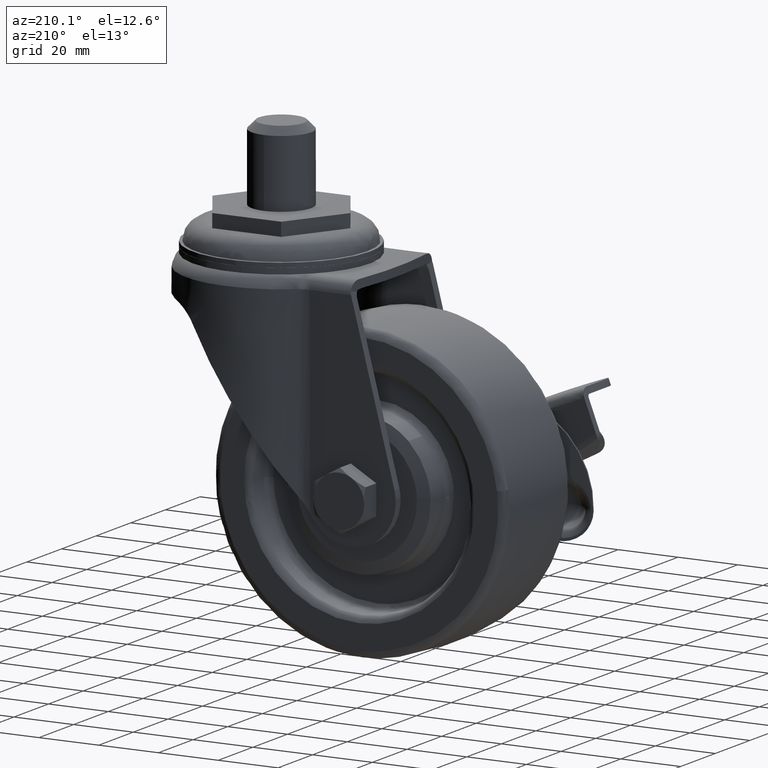
[diagram: clean part render]
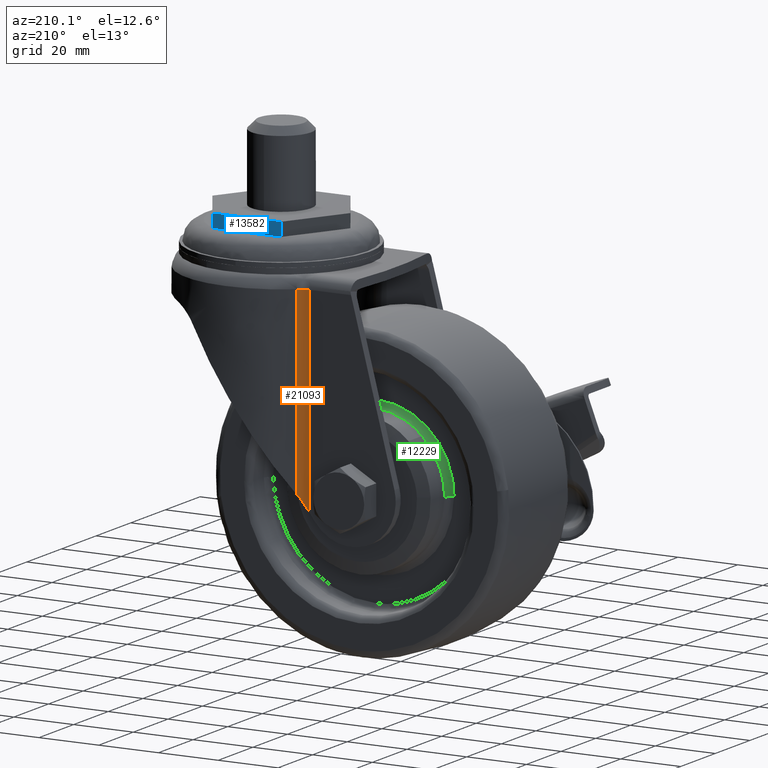
[diagram: same view with three faces highlighted in distinct colors, each labeled with its STEP entity id]
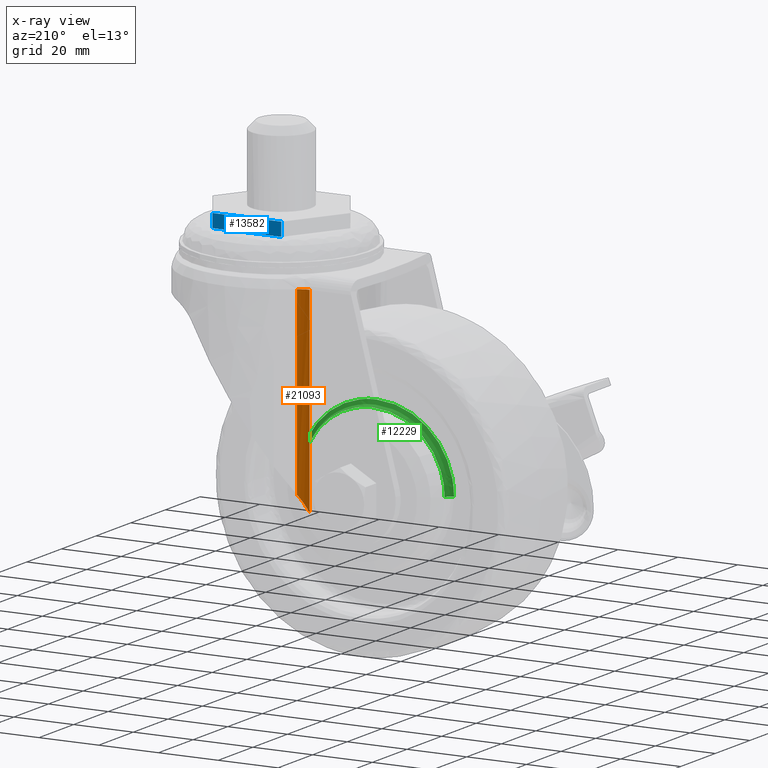
[diagram: x-ray of the same camera — body ghosted, the three highlighted faces saturated]
A machine part, auxiliary view with three faces highlighted in distinct colors.
The next image is the same camera in x-ray (body ghosted, the three faces saturated) — at least one of them is partly hidden behind the body in this view.
Their STEP definitions:

[orange] entity #21093 — the highlighted face is a freeform B-spline surface patch.
#19828=CARTESIAN_POINT('',(-19.567368212287199,24.924680209679948,-13.699999999999999));
#19829=VERTEX_POINT('',#19828);
#20657=CARTESIAN_POINT('',(-19.567368212287100,24.924680209680002,-74.579402681296202));
#20658=VERTEX_POINT('',#20657);
#20698=CARTESIAN_POINT('',(-19.567368212287100,24.924680209680002,-74.579402681296202));
#20699=CARTESIAN_POINT('',(-19.567368212287199,24.924680209679948,-13.699999999999999));
#20700=QUASI_UNIFORM_CURVE('',1,(#20698,#20699),.UNSPECIFIED.,.F.,.U.);
#20701=EDGE_CURVE('',#20658,#19829,#20700,.T.);
#20948=CARTESIAN_POINT('',(-23.200042282470001,23.699999999999999,-13.699999999999999));
#20949=VERTEX_POINT('',#20948);
#20950=CARTESIAN_POINT('',(-23.200042282470001,23.699999999999999,-13.699999999999999));
#20951=CARTESIAN_POINT('',(-21.177267567173192,23.699999999999992,-13.700000000000003));
#20952=CARTESIAN_POINT('',(-19.567368212287239,24.924680209680002,-13.699999999999999));
#20960=(BOUNDED_CURVE()B_SPLINE_CURVE(2,(#20950,#20951,#20952),.UNSPECIFIED.,.F.,.U.)CURVE()GEOMETRIC_REPRESENTATION_ITEM()QUASI_UNIFORM_CURVE()RATIONAL_B_SPLINE_CURVE((1.0,0.947598710351592,1.0))REPRESENTATION_ITEM(''));
#20961=EDGE_CURVE('',#20949,#19829,#20960,.T.);
#21055=CARTESIAN_POINT('',(-19.417744588304355,25.042294110540130,-81.547591565202026));
#21056=CARTESIAN_POINT('',(-19.417744588304355,25.042294110540130,-12.003810210869943));
#21057=CARTESIAN_POINT('',(-21.154937907496436,23.631603431171765,-81.547591565202040));
#21058=CARTESIAN_POINT('',(-21.154937907496436,23.631603431171765,-12.003810210869945));
#21059=CARTESIAN_POINT('',(-23.391628061655911,23.703059539297264,-81.547591565202040));
#21060=CARTESIAN_POINT('',(-23.391628061655911,23.703059539297264,-12.003810210869943));
#21068=(BOUNDED_SURFACE()B_SPLINE_SURFACE(1,2,((#21055,#21057,#21059),(#21056,#21058,#21060)),.UNSPECIFIED.,.F.,.F.,.U.)B_SPLINE_SURFACE_WITH_KNOTS((2,2),(3,3),(0.0,69.543781354332097),(0.0,4.329966276651525),.UNSPECIFIED.)GEOMETRIC_REPRESENTATION_ITEM()RATIONAL_B_SPLINE_SURFACE(((0.998584671659950,0.932319791310802,0.991539049057113),(0.998584671659950,0.932319791310802,0.991539049057113)))REPRESENTATION_ITEM('')SURFACE());
#21069=CARTESIAN_POINT('',(-23.200042282470051,23.699999999999999,-79.892772258733700));
#21070=VERTEX_POINT('',#21069);
#21071=CARTESIAN_POINT('',(-23.200042282470001,23.699999999999999,-13.699999999999999));
#21072=CARTESIAN_POINT('',(-23.200042282470051,23.699999999999999,-79.892772258733700));
#21073=QUASI_UNIFORM_CURVE('',1,(#21071,#21072),.UNSPECIFIED.,.F.,.U.);
#21074=EDGE_CURVE('',#20949,#21070,#21073,.T.);
#21075=ORIENTED_EDGE('',*,*,#21074,.F.);
#21076=ORIENTED_EDGE('',*,*,#20961,.T.);
#21077=ORIENTED_EDGE('',*,*,#20701,.F.);
#21078=CARTESIAN_POINT('',(-23.200042282470001,23.699999999999999,-79.892772258733601));
#21079=CARTESIAN_POINT('',(-21.177267567173146,23.699999999999999,-76.934139189368523));
#21080=CARTESIAN_POINT('',(-19.567368212287171,24.924680209680059,-74.579402681296159));
#21088=(BOUNDED_CURVE()B_SPLINE_CURVE(2,(#21078,#21079,#21080),.UNSPECIFIED.,.F.,.U.)CURVE()GEOMETRIC_REPRESENTATION_ITEM()QUASI_UNIFORM_CURVE()RATIONAL_B_SPLINE_CURVE((1.0,0.947598710351591,1.0))REPRESENTATION_ITEM(''));
#21089=EDGE_CURVE('',#21070,#20658,#21088,.T.);
#21090=ORIENTED_EDGE('',*,*,#21089,.F.);
#21091=EDGE_LOOP('',(#21075,#21076,#21077,#21090));
#21092=FACE_OUTER_BOUND('',#21091,.T.);
#21093=ADVANCED_FACE('',(#21092),#21068,.F.);

[blue] entity #13582 — the highlighted face is a freeform B-spline surface patch.
#13418=CARTESIAN_POINT('',(11.547004999999960,20.0,4.499999999999840));
#13419=VERTEX_POINT('',#13418);
#13425=CARTESIAN_POINT('',(-11.547006000000120,20.0,4.499999999999840));
#13426=VERTEX_POINT('',#13425);
#13427=CARTESIAN_POINT('',(11.547004999999960,20.0,4.499999999999840));
#13428=CARTESIAN_POINT('',(-11.547006000000120,20.0,4.499999999999840));
#13429=QUASI_UNIFORM_CURVE('',1,(#13427,#13428),.UNSPECIFIED.,.F.,.U.);
#13430=EDGE_CURVE('',#13419,#13426,#13429,.T.);
#13545=CARTESIAN_POINT('',(-11.547006000000120,20.0,0.0));
#13546=VERTEX_POINT('',#13545);
#13547=CARTESIAN_POINT('',(-11.547006000000120,20.0,0.0));
#13548=CARTESIAN_POINT('',(-11.547006000000120,20.0,4.499999999999840));
#13549=QUASI_UNIFORM_CURVE('',1,(#13547,#13548),.UNSPECIFIED.,.F.,.U.);
#13550=EDGE_CURVE('',#13546,#13426,#13549,.T.);
#13561=CARTESIAN_POINT('',(-12.700551804689450,20.0,-0.224774991278118));
#13562=CARTESIAN_POINT('',(-12.700551804689450,20.0,4.724775111977364));
#13563=CARTESIAN_POINT('',(12.700551424118929,20.0,-0.224774991278118));
#13564=CARTESIAN_POINT('',(12.700551424118929,20.0,4.724775111977364));
#13565=B_SPLINE_SURFACE_WITH_KNOTS('',1,1,((#13561,#13563),(#13562,#13564)),.UNSPECIFIED.,.F.,.F.,.U.,(2,2),(2,2),(0.0,4.949550103255483),(0.0,25.401103228808381),.UNSPECIFIED.);
#13566=ORIENTED_EDGE('',*,*,#13430,.F.);
#13567=CARTESIAN_POINT('',(11.547004999999960,20.0,0.0));
#13568=VERTEX_POINT('',#13567);
#13569=CARTESIAN_POINT('',(11.547004999999960,20.0,0.0));
#13570=CARTESIAN_POINT('',(11.547004999999960,20.0,4.499999999999840));
#13571=QUASI_UNIFORM_CURVE('',1,(#13569,#13570),.UNSPECIFIED.,.F.,.U.);
#13572=EDGE_CURVE('',#13568,#13419,#13571,.T.);
#13573=ORIENTED_EDGE('',*,*,#13572,.F.);
#13574=CARTESIAN_POINT('',(11.547004999999960,20.0,0.0));
#13575=CARTESIAN_POINT('',(-11.547006000000120,20.0,0.0));
#13576=QUASI_UNIFORM_CURVE('',1,(#13574,#13575),.UNSPECIFIED.,.F.,.U.);
#13577=EDGE_CURVE('',#13568,#13546,#13576,.T.);
#13578=ORIENTED_EDGE('',*,*,#13577,.T.);
#13579=ORIENTED_EDGE('',*,*,#13550,.T.);
#13580=EDGE_LOOP('',(#13566,#13573,#13578,#13579));
#13581=FACE_OUTER_BOUND('',#13580,.T.);
#13582=ADVANCED_FACE('',(#13581),#13565,.T.);

[green] entity #12229 — the highlighted face is a freeform B-spline surface patch.
#11710=CARTESIAN_POINT('',(-53.520509172911289,10.999999999923499,-56.091014484819823));
#11711=VERTEX_POINT('',#11710);
#11717=CARTESIAN_POINT('',(-37.0,11.000000000000220,-49.499999999999993));
#11718=VERTEX_POINT('',#11717);
#11719=CARTESIAN_POINT('',(-37.0,11.000000000000220,-49.499999999999993));
#11720=CARTESIAN_POINT('',(-46.575028589012895,10.999999999968434,-49.500000000000000));
#11721=CARTESIAN_POINT('',(-53.520509172911311,10.999999999923501,-56.091014484819830));
#11729=(BOUNDED_CURVE()B_SPLINE_CURVE(2,(#11719,#11720,#11721),.UNSPECIFIED.,.F.,.U.)B_SPLINE_CURVE_WITH_KNOTS((3,3),(0.500000000000000,0.621049521078662),.UNSPECIFIED.)CURVE()GEOMETRIC_REPRESENTATION_ITEM()RATIONAL_B_SPLINE_CURVE((1.0,0.858181664541775,0.853699661782680))REPRESENTATION_ITEM(''));
#11730=EDGE_CURVE('',#11718,#11711,#11729,.T.);
#11732=CARTESIAN_POINT('',(-13.000000000000011,10.999999999840879,-73.500000000000000));
#11733=VERTEX_POINT('',#11732);
#11734=CARTESIAN_POINT('',(-13.000000000000011,10.999999999840879,-73.500000000000000));
#11735=CARTESIAN_POINT('',(-13.000000000000002,10.999999999920551,-49.499999999999993));
#11736=CARTESIAN_POINT('',(-37.0,11.000000000000220,-49.499999999999993));
#11744=(BOUNDED_CURVE()B_SPLINE_CURVE(2,(#11734,#11735,#11736),.UNSPECIFIED.,.F.,.U.)B_SPLINE_CURVE_WITH_KNOTS((3,3),(0.250000000000000,0.500000000000000),.UNSPECIFIED.)CURVE()GEOMETRIC_REPRESENTATION_ITEM()RATIONAL_B_SPLINE_CURVE((1.0,0.707106781186548,1.0))REPRESENTATION_ITEM(''));
#11745=EDGE_CURVE('',#11733,#11718,#11744,.T.);
#11805=CARTESIAN_POINT('',(-61.0,10.999999999840879,-73.500000000000000));
#11806=VERTEX_POINT('',#11805);
#11820=CARTESIAN_POINT('',(-53.520509172911311,10.999999999923501,-56.091014484819830));
#11821=CARTESIAN_POINT('',(-60.999999999999993,10.999999999875111,-63.188785731161495));
#11822=CARTESIAN_POINT('',(-61.0,10.999999999840879,-73.500000000000000));
#11830=(BOUNDED_CURVE()B_SPLINE_CURVE(2,(#11820,#11821,#11822),.UNSPECIFIED.,.F.,.U.)B_SPLINE_CURVE_WITH_KNOTS((3,3),(0.621049521078662,0.750000000000000),.UNSPECIFIED.)CURVE()GEOMETRIC_REPRESENTATION_ITEM()RATIONAL_B_SPLINE_CURVE((0.853699661782680,0.848925116644773,1.0))REPRESENTATION_ITEM(''));
#11831=EDGE_CURVE('',#11711,#11806,#11830,.T.);
#12143=CARTESIAN_POINT('',(-10.861298736424224,9.004815306924796,-73.500000000000000));
#12144=CARTESIAN_POINT('',(-10.861298736424217,9.004815306924792,-47.361298736424239));
#12145=CARTESIAN_POINT('',(-36.999999999999986,9.004815306924796,-47.361298736424231));
#12146=CARTESIAN_POINT('',(-63.138701263575776,9.004815306924792,-47.361298736424217));
#12147=CARTESIAN_POINT('',(-63.138701263575790,9.004815306924796,-73.499999999999986));
#12148=CARTESIAN_POINT('',(-13.155478579055515,8.845328496431788,-73.500000000000014));
#12149=CARTESIAN_POINT('',(-13.155478579055512,8.845328496431790,-49.655478579055526));
#12150=CARTESIAN_POINT('',(-37.000000000000007,8.845328496431788,-49.655478579055512));
#12151=CARTESIAN_POINT('',(-60.844521420944474,8.845328496431790,-49.655478579055504));
#12152=CARTESIAN_POINT('',(-60.844521420944488,8.845328496431788,-73.500000000000014));
#12153=CARTESIAN_POINT('',(-12.995132609548973,11.139448450383622,-73.500000000000000));
#12154=CARTESIAN_POINT('',(-12.995132609548971,11.139448450383625,-49.495132609548989));
#12155=CARTESIAN_POINT('',(-37.000000000000007,11.139448450383622,-49.495132609548968));
#12156=CARTESIAN_POINT('',(-61.004867390450997,11.139448450383625,-49.495132609548953));
#12157=CARTESIAN_POINT('',(-61.004867390451018,11.139448450383622,-73.499999999999986));
#12165=(BOUNDED_SURFACE()B_SPLINE_SURFACE(2,2,((#12143,#12148,#12153),(#12144,#12149,#12154),(#12145,#12150,#12155),(#12146,#12151,#12156),(#12147,#12152,#12157)),.UNSPECIFIED.,.F.,.F.,.U.)B_SPLINE_SURFACE_WITH_KNOTS((3,2,3),(3,3),(0.0,43.308018264767369,86.616036529534739),(0.0,3.644740888493956),.UNSPECIFIED.)GEOMETRIC_REPRESENTATION_ITEM()RATIONAL_B_SPLINE_SURFACE(((0.910068206218876,0.595552946883686,0.905027191126598),(0.643515399959645,0.421119527297086,0.639950864003831),(0.910068206218876,0.595552946883686,0.905027191126598),(0.643515399959645,0.421119527297086,0.639950864003831),(0.910068206218876,0.595552946883686,0.905027191126598)))REPRESENTATION_ITEM('')SURFACE());
#12166=ORIENTED_EDGE('',*,*,#11745,.T.);
#12167=ORIENTED_EDGE('',*,*,#11730,.T.);
#12168=ORIENTED_EDGE('',*,*,#11831,.T.);
#12169=CARTESIAN_POINT('',(-62.999999997863178,9.000000000000224,-73.499999999999986));
#12170=VERTEX_POINT('',#12169);
#12171=CARTESIAN_POINT('',(-62.999999997863164,9.000000000000220,-73.499999999999986));
#12172=CARTESIAN_POINT('',(-61.000000000159325,9.000000002137035,-73.499999999999986));
#12173=CARTESIAN_POINT('',(-60.999999999999979,10.999999999840881,-73.500000000000000));
#12181=(BOUNDED_CURVE()B_SPLINE_CURVE(2,(#12171,#12172,#12173),.UNSPECIFIED.,.F.,.U.)B_SPLINE_CURVE_WITH_KNOTS((3,3),(-1.726807298422252,-0.285995334125974),.UNSPECIFIED.)CURVE()GEOMETRIC_REPRESENTATION_ITEM()RATIONAL_B_SPLINE_CURVE((0.882788775824881,0.622603437947508,0.878205639025744))REPRESENTATION_ITEM(''));
#12182=EDGE_CURVE('',#12170,#11806,#12181,.T.);
#12183=ORIENTED_EDGE('',*,*,#12182,.F.);
#12184=CARTESIAN_POINT('',(-37.0,9.000000000000231,-47.500000000000000));
#12185=VERTEX_POINT('',#12184);
#12186=CARTESIAN_POINT('',(-37.0,9.000000000000231,-47.500000000000000));
#12187=CARTESIAN_POINT('',(-62.999999998931578,9.000000000000227,-47.500000000000000));
#12188=CARTESIAN_POINT('',(-62.999999997863178,9.000000000000224,-73.499999999999986));
#12196=(BOUNDED_CURVE()B_SPLINE_CURVE(2,(#12186,#12187,#12188),.UNSPECIFIED.,.F.,.U.)B_SPLINE_CURVE_WITH_KNOTS((3,3),(0.500000000000000,0.750000000000000),.UNSPECIFIED.)CURVE()GEOMETRIC_REPRESENTATION_ITEM()RATIONAL_B_SPLINE_CURVE((1.0,0.707106781186548,1.000000000000000))REPRESENTATION_ITEM(''));
#12197=EDGE_CURVE('',#12185,#12170,#12196,.T.);
#12198=ORIENTED_EDGE('',*,*,#12197,.F.);
#12199=CARTESIAN_POINT('',(-11.000000002136829,9.000000000000226,-73.500000000000000));
#12200=VERTEX_POINT('',#12199);
#12201=CARTESIAN_POINT('',(-11.000000002136829,9.000000000000226,-73.500000000000000));
#12202=CARTESIAN_POINT('',(-11.000000001068413,9.000000000000227,-47.499999999999993));
#12203=CARTESIAN_POINT('',(-37.0,9.000000000000231,-47.500000000000000));
#12211=(BOUNDED_CURVE()B_SPLINE_CURVE(2,(#12201,#12202,#12203),.UNSPECIFIED.,.F.,.U.)B_SPLINE_CURVE_WITH_KNOTS((3,3),(0.250000000000000,0.500000000000000),.UNSPECIFIED.)CURVE()GEOMETRIC_REPRESENTATION_ITEM()RATIONAL_B_SPLINE_CURVE((1.0,0.707106781186547,1.0))REPRESENTATION_ITEM(''));
#12212=EDGE_CURVE('',#12200,#12185,#12211,.T.);
#12213=ORIENTED_EDGE('',*,*,#12212,.F.);
#12214=CARTESIAN_POINT('',(-11.000000002136824,9.000000000000220,-73.500000000000000));
#12215=CARTESIAN_POINT('',(-12.999999999840671,9.000000002137034,-73.500000000000000));
#12216=CARTESIAN_POINT('',(-13.000000000000009,10.999999999840883,-73.500000000000000));
#12224=(BOUNDED_CURVE()B_SPLINE_CURVE(2,(#12214,#12215,#12216),.UNSPECIFIED.,.F.,.U.)B_SPLINE_CURVE_WITH_KNOTS((3,3),(-1.726807298422254,-0.285995334125974),.UNSPECIFIED.)CURVE()GEOMETRIC_REPRESENTATION_ITEM()RATIONAL_B_SPLINE_CURVE((0.882788775824881,0.622603437947508,0.878205639025744))REPRESENTATION_ITEM(''));
#12225=EDGE_CURVE('',#12200,#11733,#12224,.T.);
#12226=ORIENTED_EDGE('',*,*,#12225,.T.);
#12227=EDGE_LOOP('',(#12166,#12167,#12168,#12183,#12198,#12213,#12226));
#12228=FACE_OUTER_BOUND('',#12227,.T.);
#12229=ADVANCED_FACE('',(#12228),#12165,.F.);